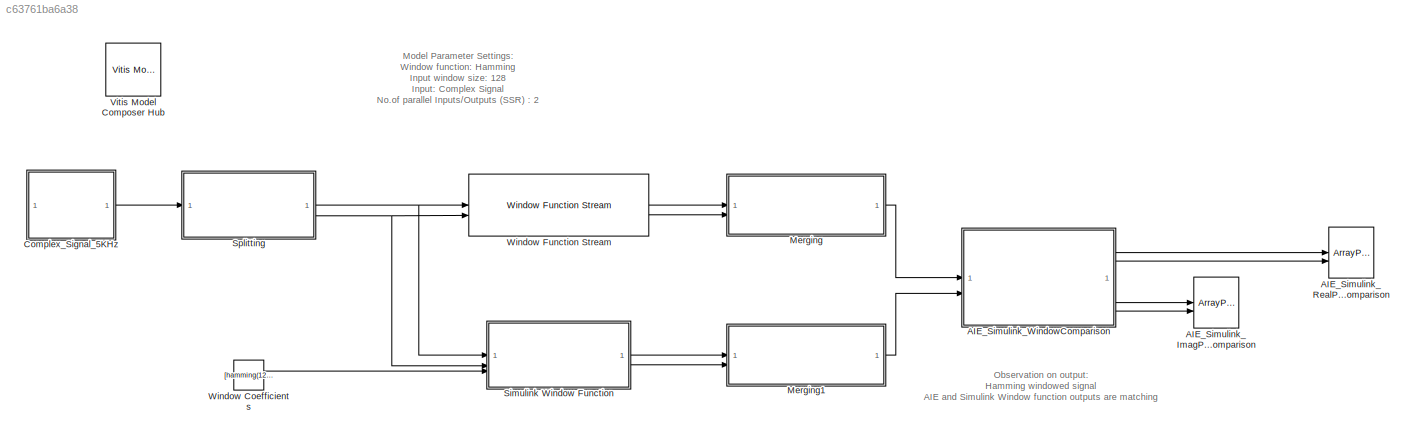
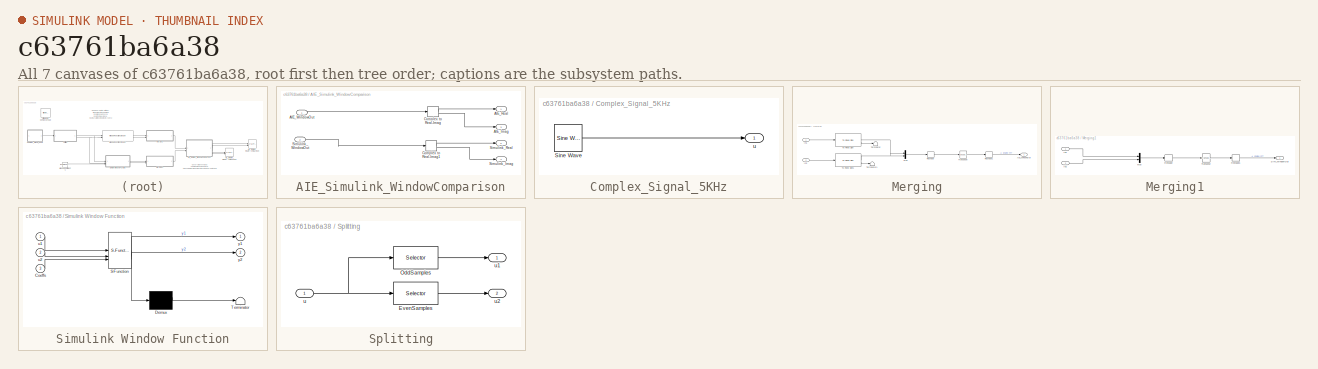
[diagram: thumbnail index - all 7 canvases of the model, root first then tree order]
MODEL slx_c63761ba6a38
KIND model
CONFIG AbsTol = auto
CONFIG EnableMultiTasking = off
CONFIG FixedStep = auto
CONFIG MaxStep = auto
CONFIG MinStep = auto
CONFIG RelTol = 1e-3
CONFIG SampleTimeConstraint = Unconstrained
CONFIG SolverName = VariableStepAuto
CONFIG StartTime = 0.0
CONFIG StopTime = 0.3
BLOCK [ArrayPlot] AIE_Simulink_ImagPart_Comparison
  AxesScaling = Manual
  GraphicalSettings = {"Style":{"BackgroundColor":[0.15686274509803921,0.15686274509803921,0.15686274509803921],"AxesColor":[0,0,0],"LabelsColor":[0.68627450980392157,0.68627450980392157,0.68627450980392157],"LineStyle":["-","-"],"LineColor":[[1,1,0.066666666666666666],[0.074509803921568626,0.62352941176470589,1]],"LineWidth":[1.5,1.5],"Marker":["none","none"],"FontSize":"small"},"Cursors":{"Enabled":false,"XLocation":...<+392ch>
  NumInputPorts = 2
  PlotType = Line
  ShowLegend = on
  WasSavedAsWebScope = on
  WindowPosition = [5.000000,269.000000,845.000000,423.000000,]
  YLimits = [-4,4]
BLOCK [ArrayPlot] AIE_Simulink_RealPart_Comparison
  AxesScaling = Manual
  GraphicalSettings = {"Style":{"BackgroundColor":[0.15686274509803921,0.15686274509803921,0.15686274509803921],"AxesColor":[0,0,0],"LabelsColor":[0.68627450980392157,0.68627450980392157,0.68627450980392157],"LineStyle":["-","-"],"LineColor":[[1,1,0.066666666666666666],[0.074509803921568626,0.62352941176470589,1]],"LineWidth":[1.5,1.5],"Marker":["none","none"],"FontSize":"small"},"Cursors":{"Enabled":false,"XLocation":...<+392ch>
  NumInputPorts = 2
  PlotType = Line
  ShowLegend = on
  WasSavedAsWebScope = on
  WindowPosition = [5.000000,41.000000,1272.000000,651.000000,]
  YLimits = [-4,4]
BLOCK [SubSystem] AIE_Simulink_WindowComparison
BLOCK [Outport] AIE_Simulink_WindowComparison/AIE_Imag
  Port = 3
BLOCK [Outport] AIE_Simulink_WindowComparison/AIE_Real
BLOCK [Inport] AIE_Simulink_WindowComparison/AIE_WindowOut
BLOCK [ComplexToRealImag] AIE_Simulink_WindowComparison/Complex to Real-Imag
BLOCK [ComplexToRealImag] AIE_Simulink_WindowComparison/Complex to Real-Imag1
BLOCK [Outport] AIE_Simulink_WindowComparison/Simulink_Imag
  Port = 4
BLOCK [Outport] AIE_Simulink_WindowComparison/Simulink_Real
  Port = 2
BLOCK [Inport] AIE_Simulink_WindowComparison/Simulink_WindowOut
  Port = 2
BLOCK [SubSystem] Complex_Signal_5KHz
BLOCK [Reference] Complex_Signal_5KHz/Sine Wave  REF=dspsrcs4/Sine Wave
  SourceBlock = dspsrcs4/Sine Wave
  SourceType = Sine Wave
BLOCK [Outport] Complex_Signal_5KHz/u
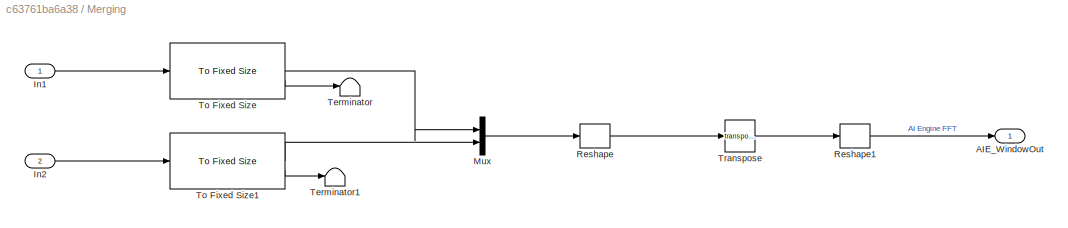
BLOCK [SubSystem] Merging
BLOCK [Outport] Merging/AIE_WindowOut
BLOCK [Inport] Merging/In1
BLOCK [Inport] Merging/In2
  Port = 2
BLOCK [Mux] Merging/Mux
  DisplayOption = bar
  Inputs = 2
BLOCK [Reshape] Merging/Reshape
  OutputDimensionality = Customize
  OutputDimensions = [128, 2]
BLOCK [Reshape] Merging/Reshape1
  OutputDimensions = [1, 10]
BLOCK [Terminator] Merging/Terminator
BLOCK [Terminator] Merging/Terminator1
BLOCK [Reference] Merging/To Fixed Size  REF=aieUtilities/To Fixed Size
  SourceBlock = aieUtilities/To Fixed Size
  SourceType = To Fixed Size
BLOCK [Reference] Merging/To Fixed Size1  REF=aieUtilities/To Fixed Size
  SourceBlock = aieUtilities/To Fixed Size
  SourceType = To Fixed Size
BLOCK [Math] Merging/Transpose
  Operator = transpose
BLOCK [SubSystem] Merging1
BLOCK [Inport] Merging1/In1
BLOCK [Inport] Merging1/In2
  Port = 2
BLOCK [Mux] Merging1/Mux
  DisplayOption = bar
  Inputs = 2
BLOCK [Reshape] Merging1/Reshape
  OutputDimensionality = Customize
  OutputDimensions = [128, 2]
BLOCK [Reshape] Merging1/Reshape1
  OutputDimensions = [1, 10]
BLOCK [Outport] Merging1/Sim_WindowOut
BLOCK [Math] Merging1/Transpose
  Operator = transpose
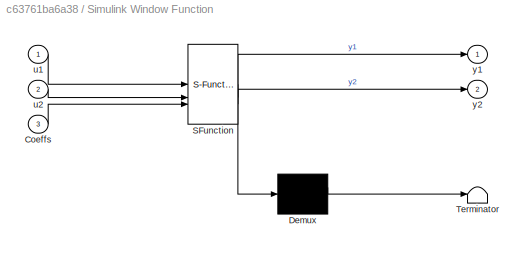
BLOCK [SubSystem] Simulink Window Function
  ErrorFcn = Stateflow.Translate.translate
  PermitHierarchicalResolution = ExplicitOnly
  SFBlockType = MATLAB Function
  TreatAsAtomicUnit = on
BLOCK [Demux] Simulink Window Function/ Demux 
  Outputs = 1
BLOCK [S-Function] Simulink Window Function/ SFunction 
  EnableBusSupport = off
  FunctionName = sf_sfun
  PortCounts = [3 3]
  SFcnIsStateOwnerBlock = off
  SFunctionDeploymentMode = off
  Tag = Stateflow S-Function 2
BLOCK [Terminator] Simulink Window Function/ Terminator 
BLOCK [Inport] Simulink Window Function/Coeffs
  Port = 3
BLOCK [Inport] Simulink Window Function/u1
BLOCK [Inport] Simulink Window Function/u2
  Port = 2
BLOCK [Outport] Simulink Window Function/y1
BLOCK [Outport] Simulink Window Function/y2
  Port = 2
BLOCK [SubSystem] Splitting
BLOCK [Selector] Splitting/EvenSamples
  IndexOptions = Index vector (dialog)
  Indices = 2:2:256
  InputPortWidth = 256
  OutputSizes = 1
BLOCK [Selector] Splitting/OddSamples
  IndexOptions = Index vector (dialog)
  Indices = 1:2:256
  InputPortWidth = 256
  OutputSizes = 1
BLOCK [Inport] Splitting/u
BLOCK [Outport] Splitting/u1
BLOCK [Outport] Splitting/u2
  Port = 2
BLOCK [Reference] Vitis Model Composer Hub  REF=vmcUtilities/Vitis Model Composer Hub
  SourceBlock = vmcUtilities/Vitis Model Composer Hub
  SourceType = VMC Hub
  Tag = genX
  UserDataPersistent = on
BLOCK [Constant] Window Coefficients
  OutDataTypeStr = single
  Value = [hamming(128);hamming(128)]
BLOCK [Reference] Window Function Stream  REF=aieDSP/Window Function Stream
  SourceBlock = aieDSP/Window Function Stream
  SourceType = Window Function Stream
ANNOTATION (root): Model Parameter Settings: Window function: Hamming Input window size: 128 Input: Complex Signal No.of parallel Inputs/Outputs (SSR) : 2
ANNOTATION (root): Observation on output: Hamming windowed signal AIE and Simulink Window function outputs are matching
LINE AIE_Simulink_WindowComparison/AIE_WindowOut:1 -> AIE_Simulink_WindowComparison/Complex to Real-Imag:1
LINE AIE_Simulink_WindowComparison/Complex to Real-Imag1:1 -> AIE_Simulink_WindowComparison/Simulink_Real:1
LINE AIE_Simulink_WindowComparison/Complex to Real-Imag1:2 -> AIE_Simulink_WindowComparison/Simulink_Imag:1
LINE AIE_Simulink_WindowComparison/Complex to Real-Imag:1 -> AIE_Simulink_WindowComparison/AIE_Real:1
LINE AIE_Simulink_WindowComparison/Complex to Real-Imag:2 -> AIE_Simulink_WindowComparison/AIE_Imag:1
LINE AIE_Simulink_WindowComparison/Simulink_WindowOut:1 -> AIE_Simulink_WindowComparison/Complex to Real-Imag1:1
LINE AIE_Simulink_WindowComparison:1 -> AIE_Simulink_RealPart_Comparison:1
LINE AIE_Simulink_WindowComparison:2 -> AIE_Simulink_RealPart_Comparison:2
LINE AIE_Simulink_WindowComparison:3 -> AIE_Simulink_ImagPart_Comparison:1
LINE AIE_Simulink_WindowComparison:4 -> AIE_Simulink_ImagPart_Comparison:2
LINE Complex_Signal_5KHz/Sine Wave:1 -> Complex_Signal_5KHz/u:1
LINE Complex_Signal_5KHz:1 -> Splitting:1
LINE Merging/In1:1 -> Merging/To Fixed Size:1
LINE Merging/In2:1 -> Merging/To Fixed Size1:1
LINE Merging/Mux:1 -> Merging/Reshape:1
LINE Merging/Reshape1:1 -> Merging/AIE_WindowOut:1
LINE Merging/Reshape:1 -> Merging/Transpose:1
LINE Merging/To Fixed Size1:1 -> Merging/Mux:2
LINE Merging/To Fixed Size1:2 -> Merging/Terminator1:1
LINE Merging/To Fixed Size:1 -> Merging/Mux:1
LINE Merging/To Fixed Size:2 -> Merging/Terminator:1
LINE Merging/Transpose:1 -> Merging/Reshape1:1
LINE Merging1/In1:1 -> Merging1/Mux:1
LINE Merging1/In2:1 -> Merging1/Mux:2
LINE Merging1/Mux:1 -> Merging1/Reshape:1
LINE Merging1/Reshape1:1 -> Merging1/Sim_WindowOut:1
LINE Merging1/Reshape:1 -> Merging1/Transpose:1
LINE Merging1/Transpose:1 -> Merging1/Reshape1:1
LINE Merging1:1 -> AIE_Simulink_WindowComparison:2
LINE Merging:1 -> AIE_Simulink_WindowComparison:1
LINE Simulink Window Function:1 -> Merging1:1
LINE Simulink Window Function:2 -> Merging1:2
LINE Splitting/EvenSamples:1 -> Splitting/u2:1
LINE Splitting/OddSamples:1 -> Splitting/u1:1
NET Splitting/u:1 -> Splitting/EvenSamples:1, Splitting/OddSamples:1
NET Splitting:1 -> Simulink Window Function:1, Window Function Stream:1
NET Splitting:2 -> Simulink Window Function:2, Window Function Stream:2
LINE Window Coefficients:1 -> Simulink Window Function:3
LINE Window Function Stream:1 -> Merging:1
LINE Window Function Stream:2 -> Merging:2
note: NET lines group one-source signal fan-out (src -> all destinations, sorted); 1:1 wires keep LINE
CHART Simulink Window Function states=1 transitions=1
  STATE_LABEL 'eML_blk_kernel()'
  STATE_LABEL "SCRIPT:\nfunction [y1,y2] = WindowFunction(u1,u2,Coeffs)\ny1 = complex(zeros(128,1,'single'));\ny2 = complex(zeros(128,1,'single'));\ncount = 0;\ncount2 = 0;\nfor i = 1:1:256\n   if(rem(i,2)==1)\n   count = count + 1;\n   y1(count,1) = (Coeffs(i,1)*u1(count,1));\n   else\n   count2 = count2 + 1;\n   y2(count2,1) = (Coeffs(i,1)*u2(count2,1));\n\n   end\nend\n\nend\n\n\n\n\n"
CHART  states=0 transitions=0
